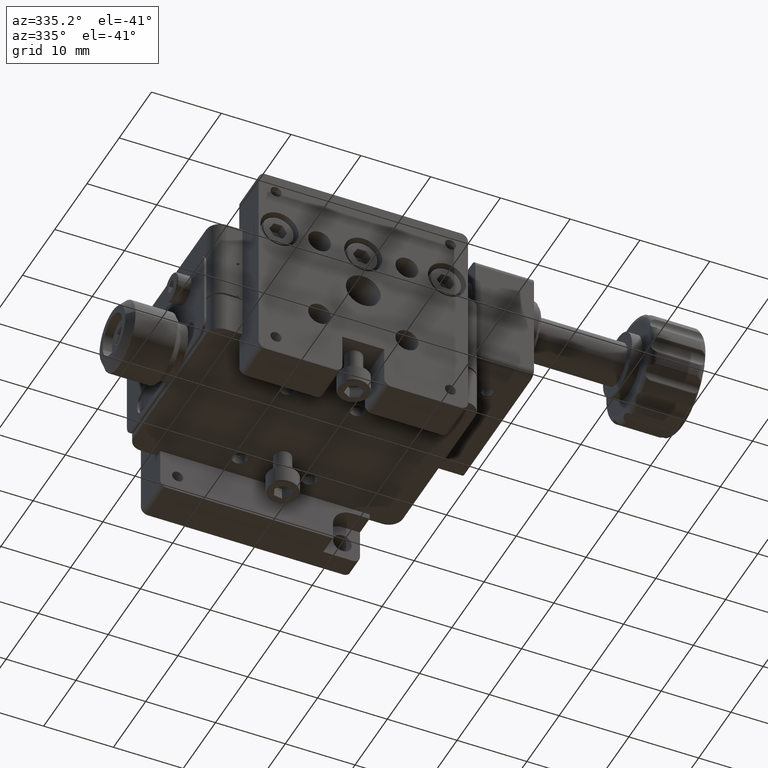
[diagram: clean part render]
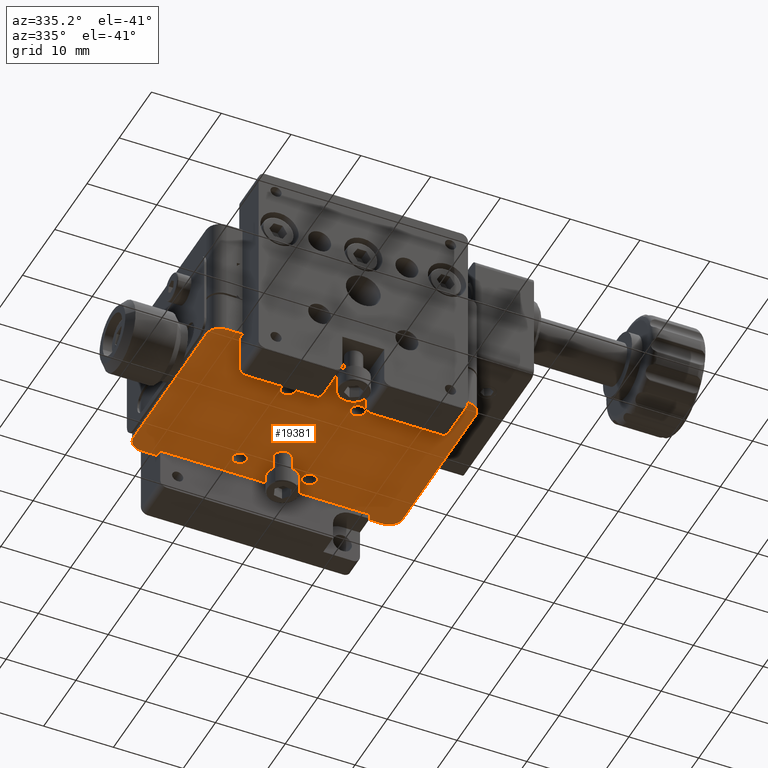
[diagram: same view with one face highlighted and labeled with its STEP entity id]
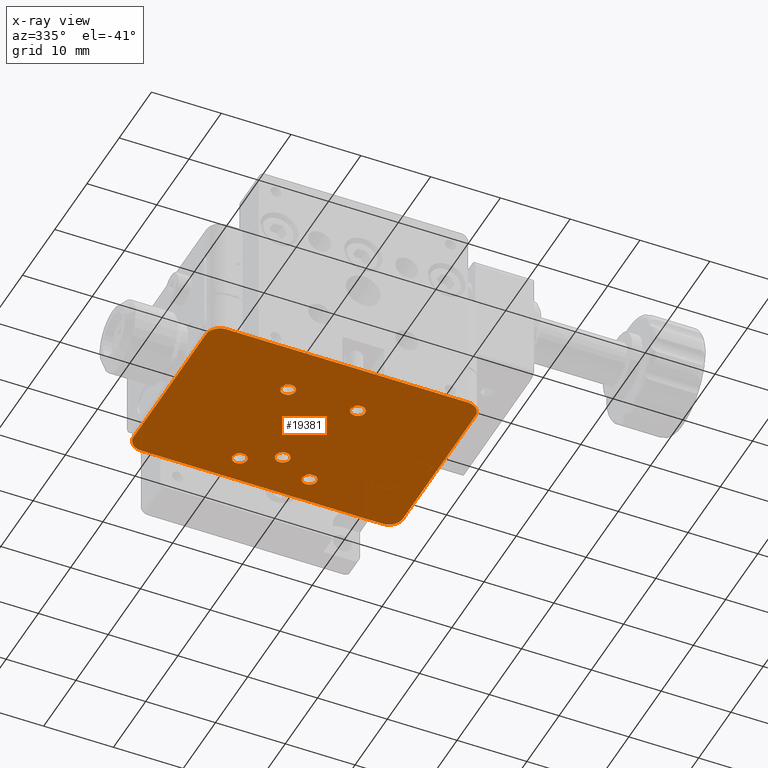
[diagram: x-ray of the same camera — body ghosted, the highlighted face saturated]
A machine part, auxiliary view. The second image highlights one B-rep face of the part: STEP entity #19381.
The next image is the same camera in x-ray: the body ghosted, the highlighted face saturated — about 0% of this face is hidden behind the body in this view.
In plain terms, the highlighted planar face has unit normal (0, -0, 1).
Its self-contained STEP definition (entity closure, byte-faithful):
#98 = VERTEX_POINT ( 'NONE', #23918 ) ;
#1376 = EDGE_LOOP ( 'NONE', ( #29784, #4225 ) ) ;
#1805 = DIRECTION ( 'NONE',  ( 0.0000000000000000000, 1.000000000000000000, 0.0000000000000000000 ) ) ;
#1847 = ORIENTED_EDGE ( 'NONE', *, *, #19505, .F. ) ;
#2077 = AXIS2_PLACEMENT_3D ( 'NONE', #32976, #2590, #20346 ) ;
#2418 = FACE_BOUND ( 'NONE', #1376, .T. ) ;
#2446 = DIRECTION ( 'NONE',  ( 0.0000000000000000000, 0.0000000000000000000, 1.000000000000000000 ) ) ;
#2490 = CARTESIAN_POINT ( 'NONE',  ( -5.530954627398685400, -10.11138924702910900, 20.99999999999998200 ) ) ;
#2540 = CIRCLE ( 'NONE', #9674, 2.000000000000001800 ) ;
#2588 = ORIENTED_EDGE ( 'NONE', *, *, #17176, .T. ) ;
#2590 = DIRECTION ( 'NONE',  ( -0.0000000000000000000, -0.0000000000000000000, -1.000000000000000000 ) ) ;
#2638 = CARTESIAN_POINT ( 'NONE',  ( 4.469045372601311100, -27.16138924702910300, 20.99999999999998200 ) ) ;
#2884 = AXIS2_PLACEMENT_3D ( 'NONE', #25070, #32659, #30541 ) ;
#3043 = EDGE_LOOP ( 'NONE', ( #26413, #1847 ) ) ;
#3085 = VECTOR ( 'NONE', #28577, 1000.000000000000000 ) ;
#3159 = CARTESIAN_POINT ( 'NONE',  ( 4.469045372601312000, -11.13638924702910600, 20.99999999999998200 ) ) ;
#3224 = FACE_BOUND ( 'NONE', #27286, .T. ) ;
#3248 = DIRECTION ( 'NONE',  ( 0.0000000000000000000, 1.000000000000000000, 0.0000000000000000000 ) ) ;
#3336 = CARTESIAN_POINT ( 'NONE',  ( 18.76904537260159600, -9.136389247029107700, 20.99999999999998200 ) ) ;
#3352 = DIRECTION ( 'NONE',  ( 0.0000000000000000000, 0.0000000000000000000, 1.000000000000000000 ) ) ;
#3550 = EDGE_CURVE ( 'NONE', #4143, #13691, #31781, .T. ) ;
#3643 = VERTEX_POINT ( 'NONE', #24698 ) ;
#3646 = CIRCLE ( 'NONE', #4190, 1.024999999999989500 ) ;
#3747 = AXIS2_PLACEMENT_3D ( 'NONE', #17119, #32520, #1805 ) ;
#3787 = EDGE_LOOP ( 'NONE', ( #29420, #9694 ) ) ;
#3821 = DIRECTION ( 'NONE',  ( 0.0000000000000000000, 0.0000000000000000000, 1.000000000000000000 ) ) ;
#4013 = CARTESIAN_POINT ( 'NONE',  ( 18.76904537260159600, -31.63638924702910100, 20.99999999999998200 ) ) ;
#4061 = LINE ( 'NONE', #4298, #18358 ) ;
#4143 = VERTEX_POINT ( 'NONE', #17831 ) ;
#4190 = AXIS2_PLACEMENT_3D ( 'NONE', #23082, #10704, #10381 ) ;
#4225 = ORIENTED_EDGE ( 'NONE', *, *, #19378, .T. ) ;
#4256 = DIRECTION ( 'NONE',  ( 0.0000000000000000000, -1.000000000000000000, 0.0000000000000000000 ) ) ;
#4298 = CARTESIAN_POINT ( 'NONE',  ( 18.76904537260159600, -33.63638924702910100, 20.99999999999998200 ) ) ;
#4316 = VERTEX_POINT ( 'NONE', #5253 ) ;
#5084 = DIRECTION ( 'NONE',  ( 0.0000000000000000000, 1.000000000000000000, 0.0000000000000000000 ) ) ;
#5253 = CARTESIAN_POINT ( 'NONE',  ( -17.83095462739840500, -7.136389247029105000, 20.99999999999998200 ) ) ;
#5637 = AXIS2_PLACEMENT_3D ( 'NONE', #21695, #24249, #4256 ) ;
#5702 = AXIS2_PLACEMENT_3D ( 'NONE', #13303, #3352, #3248 ) ;
#6242 = CARTESIAN_POINT ( 'NONE',  ( 4.469045372601312000, -12.16138924702910500, 20.99999999999998200 ) ) ;
#6387 = DIRECTION ( 'NONE',  ( 0.0000000000000000000, 1.000000000000000000, 0.0000000000000000000 ) ) ;
#6417 = DIRECTION ( 'NONE',  ( 0.0000000000000000000, 1.000000000000000000, 0.0000000000000000000 ) ) ;
#6647 = VERTEX_POINT ( 'NONE', #2490 ) ;
#7113 = EDGE_CURVE ( 'NONE', #98, #20392, #22554, .T. ) ;
#7195 = EDGE_CURVE ( 'NONE', #4316, #14857, #20543, .T. ) ;
#7378 = CARTESIAN_POINT ( 'NONE',  ( -17.83095462739840500, -9.136389247029105900, 20.99999999999998200 ) ) ;
#7670 = DIRECTION ( 'NONE',  ( 0.0000000000000000000, 0.0000000000000000000, 1.000000000000000000 ) ) ;
#7888 = EDGE_CURVE ( 'NONE', #25369, #3643, #18708, .T. ) ;
#7893 = VERTEX_POINT ( 'NONE', #22506 ) ;
#8141 = VECTOR ( 'NONE', #21086, 1000.000000000000000 ) ;
#8277 = EDGE_CURVE ( 'NONE', #12497, #30220, #14724, .T. ) ;
#8516 = AXIS2_PLACEMENT_3D ( 'NONE', #7378, #19904, #12230 ) ;
#9164 = CIRCLE ( 'NONE', #10367, 1.024999999999998100 ) ;
#9674 = AXIS2_PLACEMENT_3D ( 'NONE', #17915, #12550, #18014 ) ;
#9694 = ORIENTED_EDGE ( 'NONE', *, *, #25890, .T. ) ;
#9712 = DIRECTION ( 'NONE',  ( 0.0000000000000000000, -0.0000000000000000000, 1.000000000000000000 ) ) ;
#9924 = ORIENTED_EDGE ( 'NONE', *, *, #8277, .T. ) ;
#10072 = DIRECTION ( 'NONE',  ( 0.0000000000000000000, 1.000000000000000000, 0.0000000000000000000 ) ) ;
#10155 = DIRECTION ( 'NONE',  ( 0.0000000000000000000, 0.0000000000000000000, 1.000000000000000000 ) ) ;
#10211 = EDGE_CURVE ( 'NONE', #11336, #15820, #31398, .T. ) ;
#10315 = CARTESIAN_POINT ( 'NONE',  ( -5.530954627398685400, -11.13638924702910800, 20.99999999999998200 ) ) ;
#10367 = AXIS2_PLACEMENT_3D ( 'NONE', #25425, #10155, #5084 ) ;
#10381 = DIRECTION ( 'NONE',  ( 0.0000000000000000000, -1.000000000000000000, 0.0000000000000000000 ) ) ;
#10564 = CARTESIAN_POINT ( 'NONE',  ( -19.83095462739840500, -33.63638924702910100, 20.99999999999998200 ) ) ;
#10704 = DIRECTION ( 'NONE',  ( 0.0000000000000000000, 0.0000000000000000000, -1.000000000000000000 ) ) ;
#11117 = FACE_BOUND ( 'NONE', #24859, .T. ) ;
#11336 = VERTEX_POINT ( 'NONE', #18440 ) ;
#12230 = DIRECTION ( 'NONE',  ( 0.0000000000000000000, 1.000000000000000000, 0.0000000000000000000 ) ) ;
#12497 = VERTEX_POINT ( 'NONE', #31865 ) ;
#12550 = DIRECTION ( 'NONE',  ( -0.0000000000000000000, -0.0000000000000000000, -1.000000000000000000 ) ) ;
#12580 = EDGE_CURVE ( 'NONE', #11336, #4316, #26065, .T. ) ;
#12910 = CARTESIAN_POINT ( 'NONE',  ( -19.83095462739840500, -31.63638924702910100, 20.99999999999998200 ) ) ;
#13253 = AXIS2_PLACEMENT_3D ( 'NONE', #16366, #16479, #6417 ) ;
#13303 = CARTESIAN_POINT ( 'NONE',  ( -5.530954627398684500, -26.13638924702910800, 20.99999999999998200 ) ) ;
#13691 = VERTEX_POINT ( 'NONE', #24118 ) ;
#13885 = AXIS2_PLACEMENT_3D ( 'NONE', #30355, #2446, #23220 ) ;
#14001 = CARTESIAN_POINT ( 'NONE',  ( -5.530954627398684500, -27.16138924702910600, 20.99999999999998200 ) ) ;
#14047 = VERTEX_POINT ( 'NONE', #3336 ) ;
#14724 = CIRCLE ( 'NONE', #23347, 1.024999999999998100 ) ;
#14857 = VERTEX_POINT ( 'NONE', #27198 ) ;
#15031 = EDGE_CURVE ( 'NONE', #30220, #12497, #19084, .T. ) ;
#15226 = EDGE_CURVE ( 'NONE', #6647, #31716, #31460, .T. ) ;
#15820 = VERTEX_POINT ( 'NONE', #12910 ) ;
#16366 = CARTESIAN_POINT ( 'NONE',  ( 16.76904537260160300, -31.63638924702910100, 20.99999999999998200 ) ) ;
#16442 = EDGE_CURVE ( 'NONE', #29355, #7893, #28211, .T. ) ;
#16479 = DIRECTION ( 'NONE',  ( -0.0000000000000000000, -0.0000000000000000000, -1.000000000000000000 ) ) ;
#16564 = CARTESIAN_POINT ( 'NONE',  ( 4.469045372601312000, -11.13638924702910600, 20.99999999999998200 ) ) ;
#16924 = DIRECTION ( 'NONE',  ( 0.0000000000000000000, -1.000000000000000000, 0.0000000000000000000 ) ) ;
#17119 = CARTESIAN_POINT ( 'NONE',  ( -5.530954627398685400, -11.13638924702910800, 20.99999999999998200 ) ) ;
#17176 = EDGE_CURVE ( 'NONE', #18688, #15820, #2540, .T. ) ;
#17177 = ORIENTED_EDGE ( 'NONE', *, *, #16442, .T. ) ;
#17270 = ORIENTED_EDGE ( 'NONE', *, *, #15031, .T. ) ;
#17831 = CARTESIAN_POINT ( 'NONE',  ( -0.5309546273984042700, -14.66138924702909400, 20.99999999999997900 ) ) ;
#17914 = FACE_BOUND ( 'NONE', #3787, .T. ) ;
#17915 = CARTESIAN_POINT ( 'NONE',  ( -17.83095462739840500, -31.63638924702910100, 20.99999999999998200 ) ) ;
#18014 = DIRECTION ( 'NONE',  ( 0.0000000000000000000, 1.000000000000000000, 0.0000000000000000000 ) ) ;
#18332 = CIRCLE ( 'NONE', #3747, 1.024999999999998100 ) ;
#18358 = VECTOR ( 'NONE', #16924, 1000.000000000000000 ) ;
#18440 = CARTESIAN_POINT ( 'NONE',  ( -19.83095462739840500, -9.136389247029107700, 20.99999999999998200 ) ) ;
#18688 = VERTEX_POINT ( 'NONE', #21325 ) ;
#18708 = CIRCLE ( 'NONE', #2884, 1.024999999999998100 ) ;
#18856 = AXIS2_PLACEMENT_3D ( 'NONE', #22504, #9712, #27978 ) ;
#19084 = CIRCLE ( 'NONE', #21124, 1.024999999999998100 ) ;
#19378 = EDGE_CURVE ( 'NONE', #20392, #98, #9164, .T. ) ;
#19381 = ADVANCED_FACE ( 'NONE', ( #24678, #17914, #3224, #2418, #11117, #20292 ), #20376, .F. ) ;
#19505 = EDGE_CURVE ( 'NONE', #13691, #4143, #3646, .T. ) ;
#19883 = CIRCLE ( 'NONE', #5702, 1.024999999999998100 ) ;
#19904 = DIRECTION ( 'NONE',  ( -0.0000000000000000000, -0.0000000000000000000, -1.000000000000000000 ) ) ;
#20292 = FACE_OUTER_BOUND ( 'NONE', #22546, .T. ) ;
#20345 = ORIENTED_EDGE ( 'NONE', *, *, #23923, .F. ) ;
#20346 = DIRECTION ( 'NONE',  ( 0.0000000000000000000, 1.000000000000000000, 0.0000000000000000000 ) ) ;
#20376 = PLANE ( 'NONE',  #18856 ) ;
#20392 = VERTEX_POINT ( 'NONE', #2638 ) ;
#20543 = LINE ( 'NONE', #20866, #3085 ) ;
#20866 = CARTESIAN_POINT ( 'NONE',  ( -19.83095462739840500, -7.136389247029105000, 20.99999999999998200 ) ) ;
#20917 = ORIENTED_EDGE ( 'NONE', *, *, #25415, .T. ) ;
#21086 = DIRECTION ( 'NONE',  ( 1.000000000000000000, 0.0000000000000000000, 0.0000000000000000000 ) ) ;
#21124 = AXIS2_PLACEMENT_3D ( 'NONE', #3159, #30967, #23262 ) ;
#21325 = CARTESIAN_POINT ( 'NONE',  ( -17.83095462739840500, -33.63638924702910100, 20.99999999999998200 ) ) ;
#21695 = CARTESIAN_POINT ( 'NONE',  ( -0.5309546273984042700, -13.63638924702910400, 20.99999999999997900 ) ) ;
#22504 = CARTESIAN_POINT ( 'NONE',  ( -19.83095462739840500, -33.63638924702910100, 20.99999999999998200 ) ) ;
#22506 = CARTESIAN_POINT ( 'NONE',  ( 16.76904537260160300, -33.63638924702910100, 20.99999999999998200 ) ) ;
#22546 = EDGE_LOOP ( 'NONE', ( #20917, #17177, #20345, #2588, #27582, #22564, #23524, #29758 ) ) ;
#22554 = CIRCLE ( 'NONE', #13885, 1.024999999999998100 ) ;
#22564 = ORIENTED_EDGE ( 'NONE', *, *, #12580, .T. ) ;
#22789 = ORIENTED_EDGE ( 'NONE', *, *, #26153, .T. ) ;
#23082 = CARTESIAN_POINT ( 'NONE',  ( -0.5309546273984042700, -13.63638924702910400, 20.99999999999997900 ) ) ;
#23220 = DIRECTION ( 'NONE',  ( 0.0000000000000000000, 1.000000000000000000, 0.0000000000000000000 ) ) ;
#23262 = DIRECTION ( 'NONE',  ( 0.0000000000000000000, 1.000000000000000000, 0.0000000000000000000 ) ) ;
#23288 = AXIS2_PLACEMENT_3D ( 'NONE', #10315, #7670, #10072 ) ;
#23343 = CARTESIAN_POINT ( 'NONE',  ( -19.83095462739840500, -33.63638924702910100, 20.99999999999998200 ) ) ;
#23347 = AXIS2_PLACEMENT_3D ( 'NONE', #16564, #3821, #6387 ) ;
#23524 = ORIENTED_EDGE ( 'NONE', *, *, #7195, .T. ) ;
#23682 = DIRECTION ( 'NONE',  ( 0.0000000000000000000, -1.000000000000000000, 0.0000000000000000000 ) ) ;
#23918 = CARTESIAN_POINT ( 'NONE',  ( 4.469045372601311100, -25.11138924702910600, 20.99999999999998200 ) ) ;
#23923 = EDGE_CURVE ( 'NONE', #18688, #7893, #29238, .T. ) ;
#24118 = CARTESIAN_POINT ( 'NONE',  ( -0.5309546273984042700, -12.61138924702911400, 20.99999999999997900 ) ) ;
#24249 = DIRECTION ( 'NONE',  ( 0.0000000000000000000, 0.0000000000000000000, -1.000000000000000000 ) ) ;
#24368 = CARTESIAN_POINT ( 'NONE',  ( -5.530954627398685400, -12.16138924702910500, 20.99999999999998200 ) ) ;
#24678 = FACE_BOUND ( 'NONE', #3043, .T. ) ;
#24698 = CARTESIAN_POINT ( 'NONE',  ( -5.530954627398684500, -25.11138924702910900, 20.99999999999998200 ) ) ;
#24859 = EDGE_LOOP ( 'NONE', ( #9924, #17270 ) ) ;
#25070 = CARTESIAN_POINT ( 'NONE',  ( -5.530954627398684500, -26.13638924702910800, 20.99999999999998200 ) ) ;
#25369 = VERTEX_POINT ( 'NONE', #14001 ) ;
#25415 = EDGE_CURVE ( 'NONE', #14047, #29355, #4061, .T. ) ;
#25425 = CARTESIAN_POINT ( 'NONE',  ( 4.469045372601311100, -26.13638924702910400, 20.99999999999998200 ) ) ;
#25890 = EDGE_CURVE ( 'NONE', #31716, #6647, #18332, .T. ) ;
#26043 = ORIENTED_EDGE ( 'NONE', *, *, #7888, .T. ) ;
#26065 = CIRCLE ( 'NONE', #8516, 2.000000000000000000 ) ;
#26153 = EDGE_CURVE ( 'NONE', #3643, #25369, #19883, .T. ) ;
#26413 = ORIENTED_EDGE ( 'NONE', *, *, #3550, .F. ) ;
#27198 = CARTESIAN_POINT ( 'NONE',  ( 16.76904537260160300, -7.136389247029105000, 20.99999999999998200 ) ) ;
#27286 = EDGE_LOOP ( 'NONE', ( #22789, #26043 ) ) ;
#27582 = ORIENTED_EDGE ( 'NONE', *, *, #10211, .F. ) ;
#27954 = CIRCLE ( 'NONE', #2077, 2.000000000000000000 ) ;
#27978 = DIRECTION ( 'NONE',  ( 0.0000000000000000000, 1.000000000000000000, 0.0000000000000000000 ) ) ;
#28211 = CIRCLE ( 'NONE', #13253, 2.000000000000001800 ) ;
#28577 = DIRECTION ( 'NONE',  ( 1.000000000000000000, 0.0000000000000000000, 0.0000000000000000000 ) ) ;
#29238 = LINE ( 'NONE', #23343, #8141 ) ;
#29355 = VERTEX_POINT ( 'NONE', #4013 ) ;
#29378 = VECTOR ( 'NONE', #23682, 1000.000000000000000 ) ;
#29420 = ORIENTED_EDGE ( 'NONE', *, *, #15226, .T. ) ;
#29758 = ORIENTED_EDGE ( 'NONE', *, *, #32807, .T. ) ;
#29784 = ORIENTED_EDGE ( 'NONE', *, *, #7113, .T. ) ;
#30220 = VERTEX_POINT ( 'NONE', #6242 ) ;
#30355 = CARTESIAN_POINT ( 'NONE',  ( 4.469045372601311100, -26.13638924702910400, 20.99999999999998200 ) ) ;
#30541 = DIRECTION ( 'NONE',  ( 0.0000000000000000000, 1.000000000000000000, 0.0000000000000000000 ) ) ;
#30967 = DIRECTION ( 'NONE',  ( 0.0000000000000000000, 0.0000000000000000000, 1.000000000000000000 ) ) ;
#31398 = LINE ( 'NONE', #10564, #29378 ) ;
#31460 = CIRCLE ( 'NONE', #23288, 1.024999999999998100 ) ;
#31716 = VERTEX_POINT ( 'NONE', #24368 ) ;
#31781 = CIRCLE ( 'NONE', #5637, 1.024999999999989500 ) ;
#31865 = CARTESIAN_POINT ( 'NONE',  ( 4.469045372601312000, -10.11138924702910700, 20.99999999999998200 ) ) ;
#32520 = DIRECTION ( 'NONE',  ( 0.0000000000000000000, 0.0000000000000000000, 1.000000000000000000 ) ) ;
#32659 = DIRECTION ( 'NONE',  ( 0.0000000000000000000, 0.0000000000000000000, 1.000000000000000000 ) ) ;
#32807 = EDGE_CURVE ( 'NONE', #14857, #14047, #27954, .T. ) ;
#32976 = CARTESIAN_POINT ( 'NONE',  ( 16.76904537260160300, -9.136389247029105900, 20.99999999999998200 ) ) ;